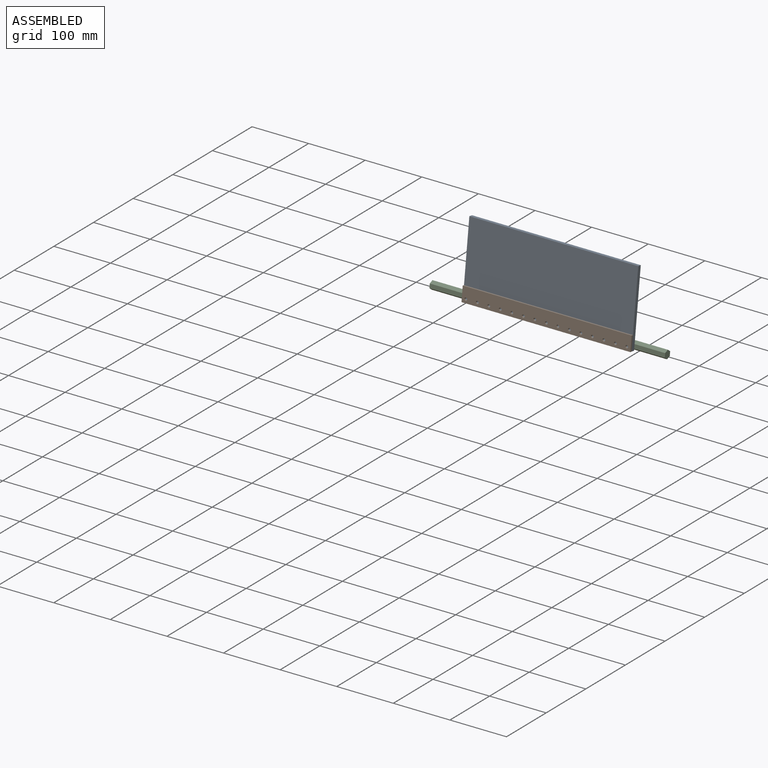
[diagram: assembled view]
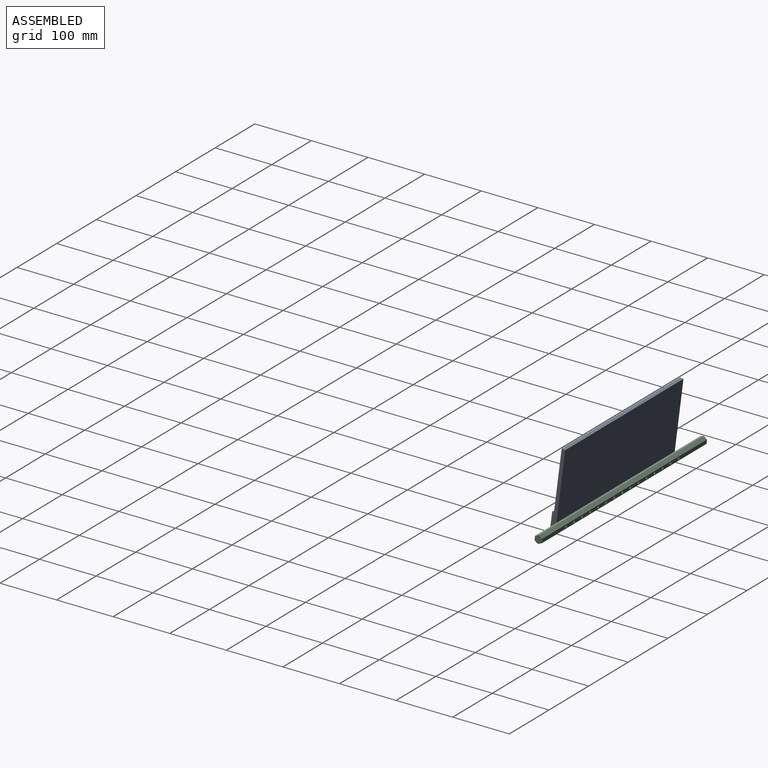
[diagram: assembled view, second angle]
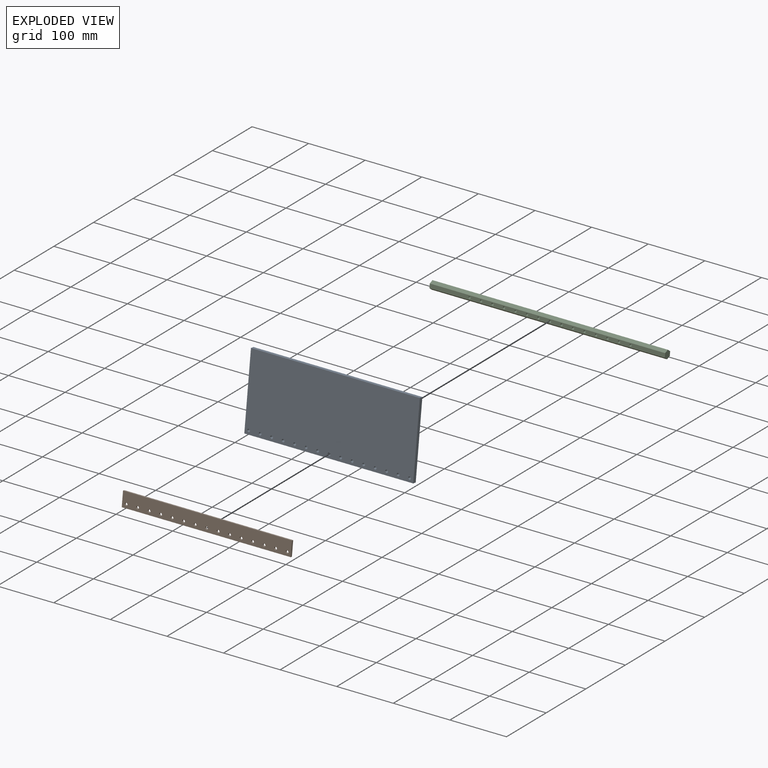
[diagram: exploded view]
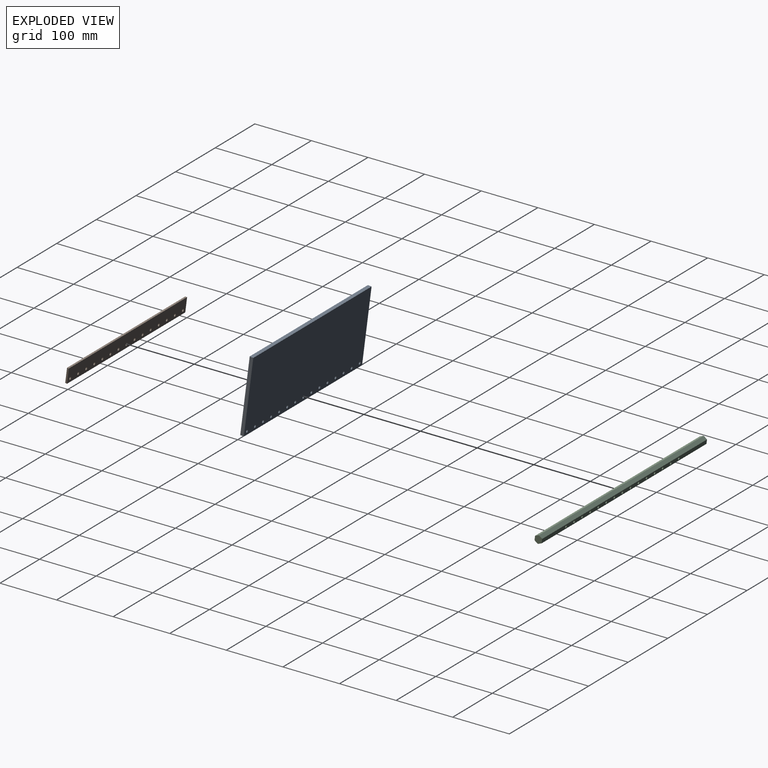
[diagram: exploded view, second angle]
ASSEMBLY  parts=3 mates=2
PART A: 21 faces, bbox 298.5x6.4x131.2 mm
  f0: plane 298.45x131.16mm, normal (0,1,0), area 38876.7mm2, adj f1,f3,f4,f5,f6,f7,f8,f9
  f1: plane 298.45x6.35mm, normal (0,0,1), area 1895.2mm2, adj f0,f2,f4,f5
  f2: plane 298.45x131.16mm, normal (0,-1,0), area 38876.7mm2, adj f1,f3,f4,f5,f6,f7,f8,f9
  f3: plane 298.45x6.35mm, normal (0,0,-1), area 1895.2mm2, adj f0,f2,f4,f5
  f4: plane 131.16x6.35mm, normal (-1,0,0), area 832.8mm2, adj f0,f1,f2,f3
  f5: plane 131.16x6.35mm, normal (1,0,0), area 832.8mm2, adj f0,f1,f2,f3
  f6: cylinder r=2.38mm len=6.35mm, axis (0,-1,0), area 95mm2, adj f0,f2
  f7: cylinder r=2.38mm len=6.35mm, axis (0,-1,0), area 95mm2, adj f0,f2
  f8: cylinder r=2.38mm len=6.35mm, axis (0,-1,0), area 95mm2, adj f0,f2
  f9: cylinder r=2.38mm len=6.35mm, axis (0,-1,0), area 95mm2, adj f0,f2
  f10: cylinder r=2.38mm len=6.35mm, axis (0,-1,0), area 95mm2, adj f0,f2
  f11: cylinder r=2.38mm len=6.35mm, axis (0,-1,0), area 95mm2, adj f0,f2
  f12: cylinder r=2.38mm len=6.35mm, axis (0,-1,0), area 95mm2, adj f0,f2
  f13: cylinder r=2.38mm len=6.35mm, axis (0,-1,0), area 95mm2, adj f0,f2
  f14: cylinder r=2.38mm len=6.35mm, axis (0,-1,0), area 95mm2, adj f0,f2
  f15: cylinder r=2.38mm len=6.35mm, axis (0,-1,0), area 95mm2, adj f0,f2
  f16: cylinder r=2.38mm len=6.35mm, axis (0,-1,0), area 95mm2, adj f0,f2
  f17: cylinder r=2.38mm len=6.35mm, axis (0,-1,0), area 95mm2, adj f0,f2
  f18: cylinder r=2.38mm len=6.35mm, axis (0,-1,0), area 95mm2, adj f0,f2
  f19: cylinder r=2.38mm len=6.35mm, axis (0,-1,0), area 95mm2, adj f0,f2
  f20: cylinder r=2.38mm len=6.35mm, axis (0,-1,0), area 95mm2, adj f0,f2
PART B: 21 faces, bbox 298.5x3.2x25.4 mm
  f0: plane 298.45x3.18mm, normal (0,0,1), area 947.6mm2, adj f1,f18,f19,f20
  f1: plane 25.4x3.18mm, normal (-1,0,0), area 80.6mm2, adj f0,f2,f19,f20
  f2: plane 298.45x3.18mm, normal (0,0,-1), area 947.6mm2, adj f1,f18,f19,f20
  f3: cylinder r=2.38mm len=4.76mm, axis (0,1,0), area 47.5mm2, adj f19,f20
  f4: cylinder r=2.38mm len=4.76mm, axis (0,1,0), area 47.5mm2, adj f19,f20
  f5: cylinder r=2.38mm len=4.76mm, axis (0,1,0), area 47.5mm2, adj f19,f20
  f6: cylinder r=2.38mm len=4.76mm, axis (0,1,0), area 47.5mm2, adj f19,f20
  f7: cylinder r=2.38mm len=4.76mm, axis (0,1,0), area 47.5mm2, adj f19,f20
  f8: cylinder r=2.38mm len=4.76mm, axis (0,1,0), area 47.5mm2, adj f19,f20
  f9: cylinder r=2.38mm len=4.76mm, axis (0,1,0), area 47.5mm2, adj f19,f20
  f10: cylinder r=2.38mm len=4.76mm, axis (0,1,0), area 47.5mm2, adj f19,f20
  f11: cylinder r=2.38mm len=4.76mm, axis (0,1,0), area 47.5mm2, adj f19,f20
  f12: cylinder r=2.38mm len=4.76mm, axis (0,1,0), area 47.5mm2, adj f19,f20
  f13: cylinder r=2.38mm len=4.76mm, axis (0,1,0), area 47.5mm2, adj f19,f20
  f14: cylinder r=2.38mm len=4.76mm, axis (0,1,0), area 47.5mm2, adj f19,f20
  f15: cylinder r=2.38mm len=4.76mm, axis (0,1,0), area 47.5mm2, adj f19,f20
  f16: cylinder r=2.38mm len=4.76mm, axis (0,1,0), area 47.5mm2, adj f19,f20
  f17: cylinder r=2.38mm len=4.76mm, axis (0,1,0), area 47.5mm2, adj f19,f20
  f18: plane 25.4x3.18mm, normal (1,0,0), area 80.6mm2, adj f0,f2,f19,f20
  f19: plane 298.45x25.4mm, normal (0,-1,0), area 7313.4mm2, adj f0,f1,f2,f3,f4,f5,f6,f7
  f20: plane 298.45x25.4mm, normal (0,1,0), area 7313.4mm2, adj f0,f1,f2,f3,f4,f5,f6,f7
PART C: 23 faces, bbox 415.9x12.7x14.7 mm
  f0: plane 415.93x6.35mm, normal (0,-0.5,-0.87), area 3049.7mm2, adj f1,f5,f21,f22
  f1: plane 415.93x6.35mm, normal (0,0.5,-0.87), area 3049.7mm2, adj f0,f2,f21,f22
  f2: plane 415.93x7.33mm, normal (0,1,0), area 2857.6mm2, adj f1,f3,f6,f7,f8,f9,f10,f11
  f3: plane 415.93x6.35mm, normal (0,0.5,0.87), area 3049.7mm2, adj f2,f4,f21,f22
  f4: plane 415.93x6.35mm, normal (0,-0.5,0.87), area 3049.7mm2, adj f3,f5,f21,f22
  f5: plane 415.93x7.33mm, normal (0,-1,0), area 2857.6mm2, adj f0,f4,f6,f7,f8,f9,f10,f11
  f6: cylinder r=2.02mm len=12.7mm, axis (0,-1,0), area 161.1mm2, adj f2,f5
  f7: cylinder r=2.02mm len=12.7mm, axis (0,-1,0), area 161.1mm2, adj f2,f5
  f8: cylinder r=2.02mm len=12.7mm, axis (0,-1,0), area 161.1mm2, adj f2,f5
  f9: cylinder r=2.02mm len=12.7mm, axis (0,-1,0), area 161.1mm2, adj f2,f5
  f10: cylinder r=2.02mm len=12.7mm, axis (0,-1,0), area 161.1mm2, adj f2,f5
  f11: cylinder r=2.02mm len=12.7mm, axis (0,-1,0), area 161.1mm2, adj f2,f5
  f12: cylinder r=2.02mm len=12.7mm, axis (0,-1,0), area 161.1mm2, adj f2,f5
  f13: cylinder r=2.02mm len=12.7mm, axis (0,-1,0), area 161.1mm2, adj f2,f5
  f14: cylinder r=2.02mm len=12.7mm, axis (0,-1,0), area 161.1mm2, adj f2,f5
  f15: cylinder r=2.02mm len=12.7mm, axis (0,-1,0), area 161.1mm2, adj f2,f5
  f16: cylinder r=2.02mm len=12.7mm, axis (0,-1,0), area 161.1mm2, adj f2,f5
  f17: cylinder r=2.02mm len=12.7mm, axis (0,-1,0), area 161.1mm2, adj f2,f5
  f18: cylinder r=2.02mm len=12.7mm, axis (0,-1,0), area 161.1mm2, adj f2,f5
  f19: cylinder r=2.02mm len=12.7mm, axis (0,-1,0), area 161.1mm2, adj f2,f5
  f20: cylinder r=2.02mm len=12.7mm, axis (0,-1,0), area 161.1mm2, adj f2,f5
  f21: plane 14.66x12.7mm, normal (-1,0,0), area 139.7mm2, adj f0,f1,f2,f3,f4,f5
  f22: plane 14.66x12.7mm, normal (1,0,0), area 139.7mm2, adj f0,f1,f2,f3,f4,f5
PLACE A rot(axis=(-1,0,0),7.3deg) t=(158.75,22.24,195.34)mm
PLACE B rot(axis=(-1,0,0),7.3deg) t=(158.75,22.24,195.34)mm
PLACE C rot(axis=(-1,0,0),7.3deg) t=(158.75,22.24,195.34)mm fixed
MATE fastened A.f20 <-> C.f14  axis (0,0.99,-0.13) through (57.15,-31.7,25.23)mm
MATE fastened B.f15 <-> A.f8  axis (0,0.99,-0.13) through (16.51,-38,26.04)mm
